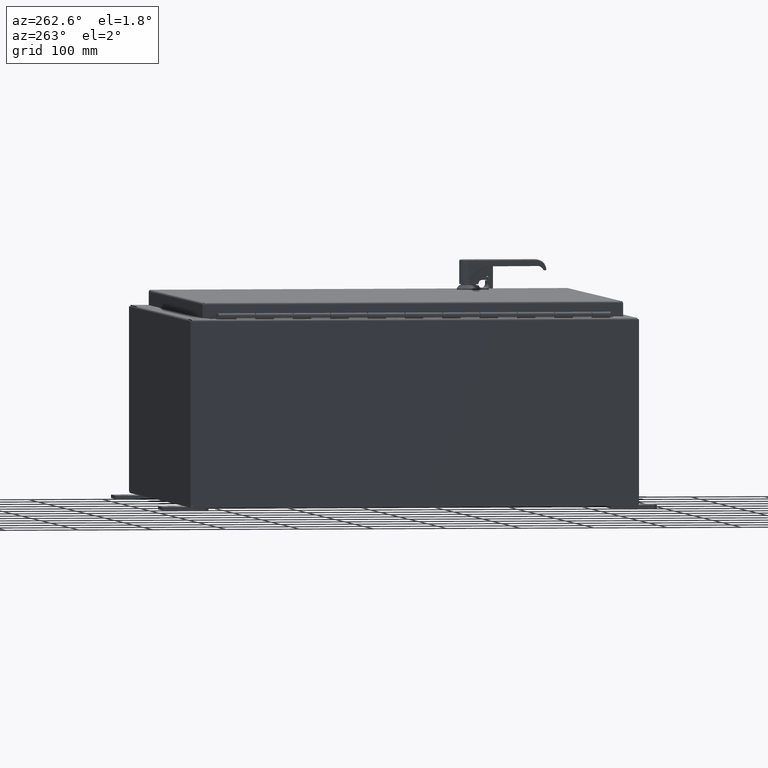
[diagram: clean part render]
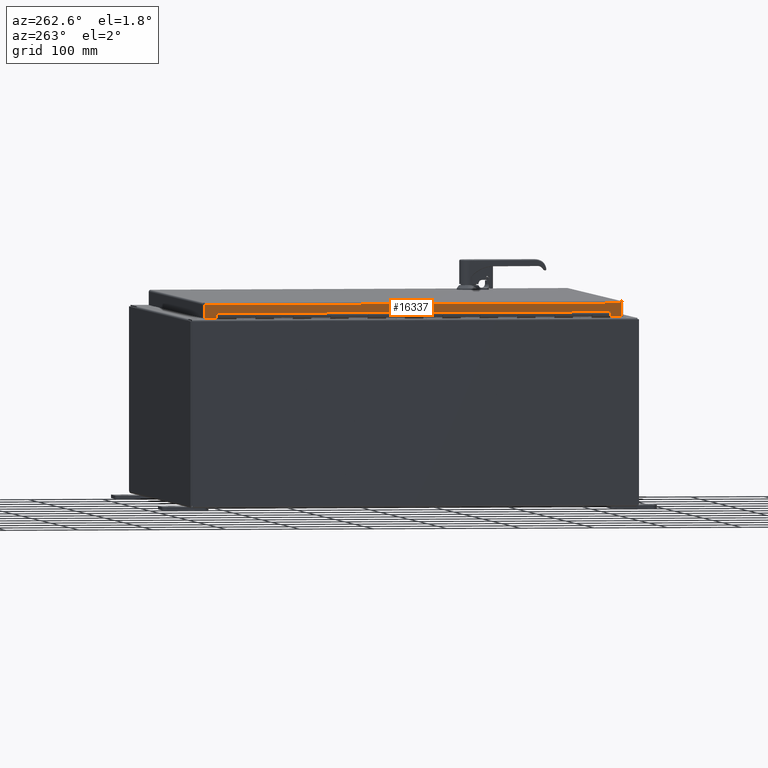
[diagram: same view with one face highlighted and labeled with its STEP entity id]
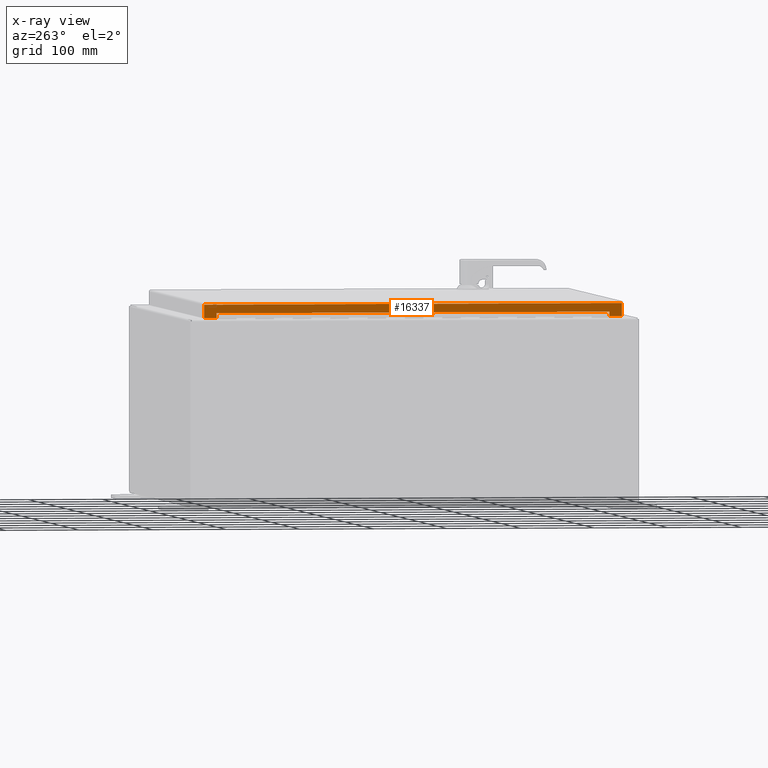
[diagram: x-ray of the same camera — body ghosted, the highlighted face saturated]
A machine part, auxiliary view. The second image highlights one B-rep face of the part: STEP entity #16337.
The next image is the same camera in x-ray: the body ghosted, the highlighted face saturated — about 0% of this face is hidden behind the body in this view.
In plain terms, the highlighted planar face has unit normal (-1, -0, 0).
Its self-contained STEP definition (entity closure, byte-faithful):
#15416=CARTESIAN_POINT('',(-6.598793E-015,21.765625000000004,-0.488500000000003));
#15417=VERTEX_POINT('',#15416);
#15424=CARTESIAN_POINT('',(-6.557079E-015,21.765625000000007,-0.738500000000003));
#15425=VERTEX_POINT('',#15424);
#15426=CARTESIAN_POINT('',(-6.557079E-015,21.765625000000007,-0.738500000000003));
#15427=DIRECTION('',(0.0,0.0,1.0));
#15428=VECTOR('',#15427,0.25);
#15429=LINE('',#15426,#15428);
#15430=EDGE_CURVE('',#15425,#15417,#15429,.T.);
#15456=CARTESIAN_POINT('',(-1.051804E-016,0.734374999999993,-0.7385));
#15457=VERTEX_POINT('',#15456);
#15464=CARTESIAN_POINT('',(-1.468944E-016,0.734374999999996,-0.4885));
#15465=VERTEX_POINT('',#15464);
#15466=CARTESIAN_POINT('',(-1.468944E-016,0.734374999999996,-0.4885));
#15467=DIRECTION('',(0.0,0.0,-1.0));
#15468=VECTOR('',#15467,0.25);
#15469=LINE('',#15466,#15468);
#15470=EDGE_CURVE('',#15465,#15457,#15469,.T.);
#15493=CARTESIAN_POINT('',(-6.598793E-015,21.765625000000004,-0.488500000000003));
#15494=DIRECTION('',(0.0,-1.0,0.0));
#15495=VECTOR('',#15494,21.031250000000007);
#15496=LINE('',#15493,#15495);
#15497=EDGE_CURVE('',#15417,#15465,#15496,.T.);
#15509=CARTESIAN_POINT('',(-6.753128E-015,22.425292893218813,-0.738499999999999));
#15510=VERTEX_POINT('',#15509);
#15511=CARTESIAN_POINT('',(-6.563792E-015,21.765625000000007,-0.738499999999999));
#15512=DIRECTION('',(0.0,1.0,0.0));
#15513=VECTOR('',#15512,0.65966789321881);
#15514=LINE('',#15511,#15513);
#15515=EDGE_CURVE('',#15425,#15510,#15514,.T.);
#15548=CARTESIAN_POINT('',(9.834653E-017,0.074707106781186,-0.7385));
#15549=VERTEX_POINT('',#15548);
#15556=CARTESIAN_POINT('',(9.834653E-017,0.074707106781186,-0.7385));
#15557=DIRECTION('',(0.0,1.0,0.0));
#15558=VECTOR('',#15557,0.659667893218808);
#15559=LINE('',#15556,#15558);
#15560=EDGE_CURVE('',#15549,#15457,#15559,.T.);
#16156=CARTESIAN_POINT('',(-2.185478E-017,0.074707106781184,-0.03125));
#16157=VERTEX_POINT('',#16156);
#16158=CARTESIAN_POINT('',(-6.873330E-015,22.425292893218813,-0.031249999999999));
#16159=VERTEX_POINT('',#16158);
#16160=CARTESIAN_POINT('',(-1.380855E-017,0.074707106781183,-0.03125));
#16161=DIRECTION('',(0.0,1.0,0.0));
#16162=VECTOR('',#16161,22.35058578643763);
#16163=LINE('',#16160,#16162);
#16164=EDGE_CURVE('',#16157,#16159,#16163,.T.);
#16202=CARTESIAN_POINT('',(-6.759595E-015,22.425292893218813,-0.738499999999999));
#16203=DIRECTION('',(0.0,0.0,1.0));
#16204=VECTOR('',#16203,0.70725);
#16205=LINE('',#16202,#16204);
#16206=EDGE_CURVE('',#15510,#16159,#16205,.T.);
#16310=CARTESIAN_POINT('',(-1.092739E-017,0.074707106781186,-0.03125));
#16311=DIRECTION('',(0.0,0.0,-1.0));
#16312=VECTOR('',#16311,0.70725);
#16313=LINE('',#16310,#16312);
#16314=EDGE_CURVE('',#16157,#15549,#16313,.T.);
#16322=CARTESIAN_POINT('',(-3.398419E-015,11.249999999999998,-0.335222270471426));
#16323=DIRECTION('',(-1.0,0.0,0.0));
#16324=DIRECTION('',(0.0,0.0,1.0));
#16325=AXIS2_PLACEMENT_3D('',#16322,#16323,#16324);
#16326=PLANE('',#16325);
#16327=ORIENTED_EDGE('',*,*,#15470,.T.);
#16328=ORIENTED_EDGE('',*,*,#15560,.F.);
#16329=ORIENTED_EDGE('',*,*,#16314,.F.);
#16330=ORIENTED_EDGE('',*,*,#16164,.T.);
#16331=ORIENTED_EDGE('',*,*,#16206,.F.);
#16332=ORIENTED_EDGE('',*,*,#15515,.F.);
#16333=ORIENTED_EDGE('',*,*,#15430,.T.);
#16334=ORIENTED_EDGE('',*,*,#15497,.T.);
#16335=EDGE_LOOP('',(#16327,#16328,#16329,#16330,#16331,#16332,#16333,#16334));
#16336=FACE_OUTER_BOUND('',#16335,.T.);
#16337=ADVANCED_FACE('',(#16336),#16326,.T.);